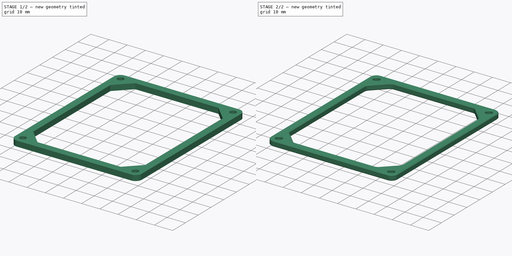
[diagram: build sequence overview — one tinted view per stage of 2, left to right]
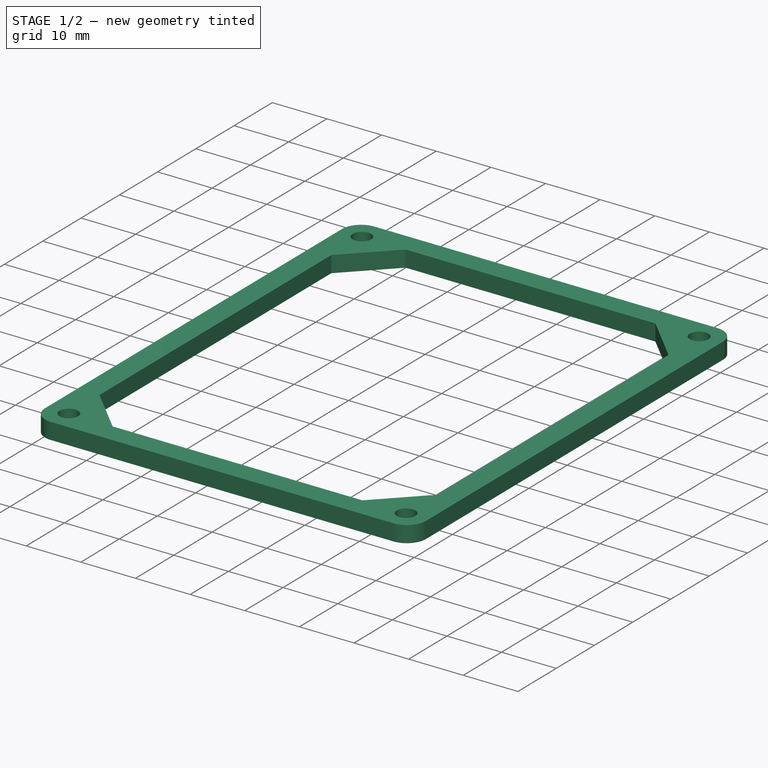
[diagram: stage 1 of 2 — iso view after this stage's code; geometry added in this stage tinted green]
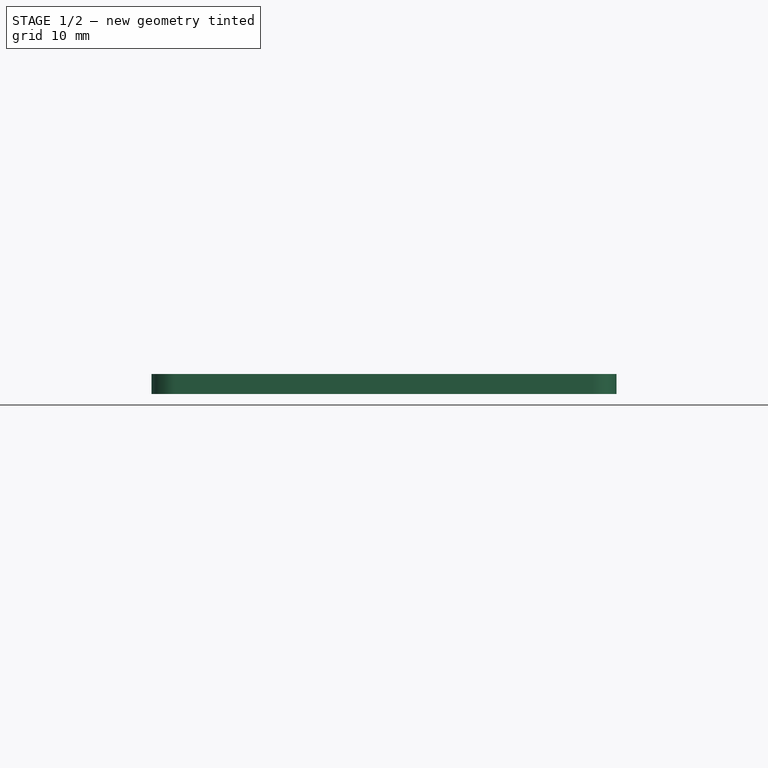
[diagram: stage 1 of 2 — front view after this stage's code; geometry added in this stage tinted green]
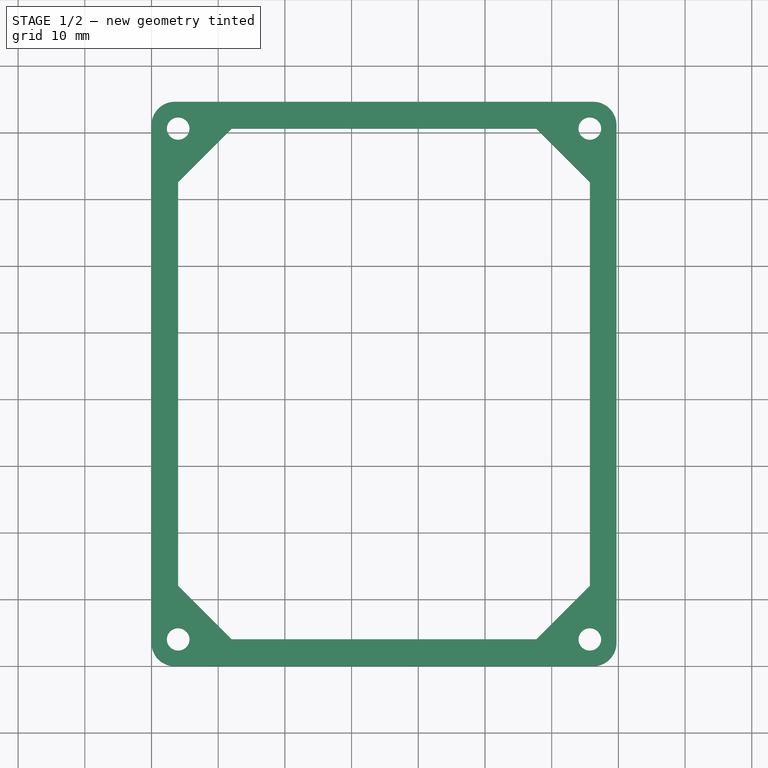
[diagram: stage 1 of 2 — top view after this stage's code; geometry added in this stage tinted green]
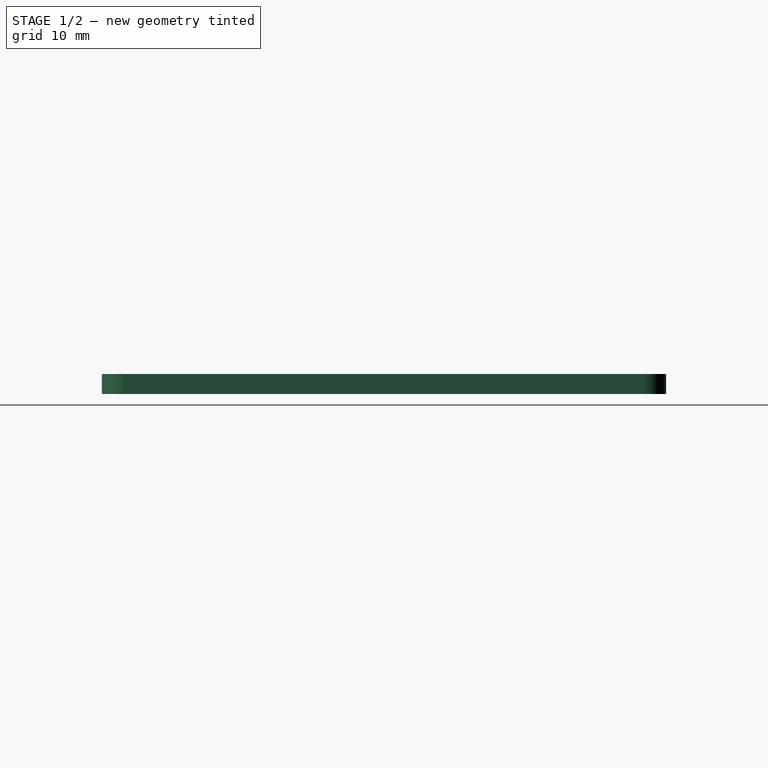
[diagram: stage 1 of 2 — right view after this stage's code; geometry added in this stage tinted green]
FCSTD DOCUMENT  (FreeCAD 0.19R24291 (Git))
Label: 2p5-inch-hdd-spacer
License: All rights reserved
LicenseURL: http://en.wikipedia.org/wiki/All_rights_reserved
objects: PartDesign::Fillet×2, Sketcher::SketchObject×1, PartDesign::Pad×1, PartDesign::Chamfer×1, PartDesign::Body×1
note: 10 computed .brp shape members not serialized (recipe doc carries the construction recipe); baked Part::Feature solids carry a one-line shape summary decoded from their .brp

FEATURE [Sketcher::SketchObject] Sketch
  FullyConstrained = true
  MapMode = 5
  Support = -> [XY_Plane]
  sketch-geometry (16):
    g0: Circle CenterX=4 CenterY=80.6 CenterZ=0 NormalX=0 NormalY=0 NormalZ=1 AngleXU=0 Radius=1.7
    g1: Circle CenterX=65.72 CenterY=80.6 CenterZ=0 NormalX=0 NormalY=0 NormalZ=1 AngleXU=0 Radius=1.7
    g2: Circle CenterX=4 CenterY=4 CenterZ=0 NormalX=0 NormalY=0 NormalZ=1 AngleXU=0 Radius=1.7
    g3: Circle CenterX=65.72 CenterY=4 CenterZ=0 NormalX=0 NormalY=0 NormalZ=1 AngleXU=0 Radius=1.7
    g4: LineSegment StartX=0 StartY=84.6 StartZ=0 EndX=69.72 EndY=84.6 EndZ=0
    g5: LineSegment StartX=69.72 StartY=84.6 StartZ=0 EndX=69.72 EndY=0 EndZ=0
    g6: LineSegment StartX=69.72 StartY=0 StartZ=0 EndX=0 EndY=0 EndZ=0
    g7: LineSegment StartX=0 StartY=0 StartZ=0 EndX=0 EndY=84.6 EndZ=0
    g8: LineSegment StartX=4 StartY=72.6 StartZ=0 EndX=12 EndY=80.6 EndZ=0
    g9: LineSegment StartX=12 StartY=80.6 StartZ=0 EndX=57.72 EndY=80.6 EndZ=0
    g10: LineSegment StartX=57.72 StartY=80.6 StartZ=0 EndX=65.72 EndY=72.6 EndZ=0
    g11: LineSegment StartX=65.72 StartY=72.6 StartZ=0 EndX=65.72 EndY=12 EndZ=0
    g12: LineSegment StartX=65.72 StartY=12 StartZ=0 EndX=57.72 EndY=4 EndZ=0
    g13: LineSegment StartX=57.72 StartY=4 StartZ=0 EndX=12 EndY=4 EndZ=0
    g14: LineSegment StartX=12 StartY=4 StartZ=0 EndX=4 EndY=12 EndZ=0
    g15: LineSegment StartX=4 StartY=12 StartZ=0 EndX=4 EndY=72.6 EndZ=0
  constraints (47):
    c: Equal(g3,g2)
    c: Equal(g2,g0)
    c: Equal(g0,g1)
    c: Radius(g1) = 1.7
    c: Horizontal(g0,g1)
    c: Horizontal(g2,g3)
    c: Vertical(g2,g0)
    c: Vertical(g1,g3)
    c: DistanceX(g0,g1) = 61.72
    c: DistanceY(g3,g1) = 76.6
    c: Coincident(g4,g5)
    c: Coincident(g5,g6)
    c: Coincident(g6,g7)
    c: Coincident(g7,g4)
    c: Horizontal(g4)
    c: Horizontal(g6)
    c: Vertical(g5)
    c: Vertical(g7)
    c: DistanceX(g4,g0) = 4
    c: DistanceX(g1,g4) = 4
    c: DistanceY(g0,g4) = 4
    c: DistanceY(g6,g2) = 4
    c: Coincident(g8,g9)
    c: Horizontal(g9)
    c: Coincident(g9,g10)
    c: Coincident(g10,g11)
    c: Vertical(g11)
    c: Coincident(g11,g12)
    c: Coincident(g12,g13)
    c: Horizontal(g13)
    c: Coincident(g13,g14)
    c: Coincident(g14,g15)
    c: Coincident(g15,g8)
    c: Vertical(g15)
    c: Vertical(g8,g13)
    c: Vertical(g12,g9)
    c: Horizontal(g8,g10)
    c: Horizontal(g14,g11)
    c: Vertical(g2,g14)
    c: Vertical(g11,g3)
    c: Horizontal(g2,g13)
    c: Horizontal(g0,g8)
    c: DistanceX(g0,g8) = 8
    c: DistanceX(g9,g1) = 8
    c: DistanceY(g8,g0) = 8
    c: DistanceY(g2,g14) = 8
    c: Coincident(g6,g-1)
FEATURE [PartDesign::Pad] Pad
  Direction = (1,1,1)
  Length = 3
  Length2 = 100
  Profile = -> Sketch
  Type = 0
FEATURE [PartDesign::Fillet] Fillet
  Base = -> Pad [Edge8,Edge5,Edge2,Edge1]
  BaseFeature = -> Pad
  Radius = 3.5
  SupportTransform = false
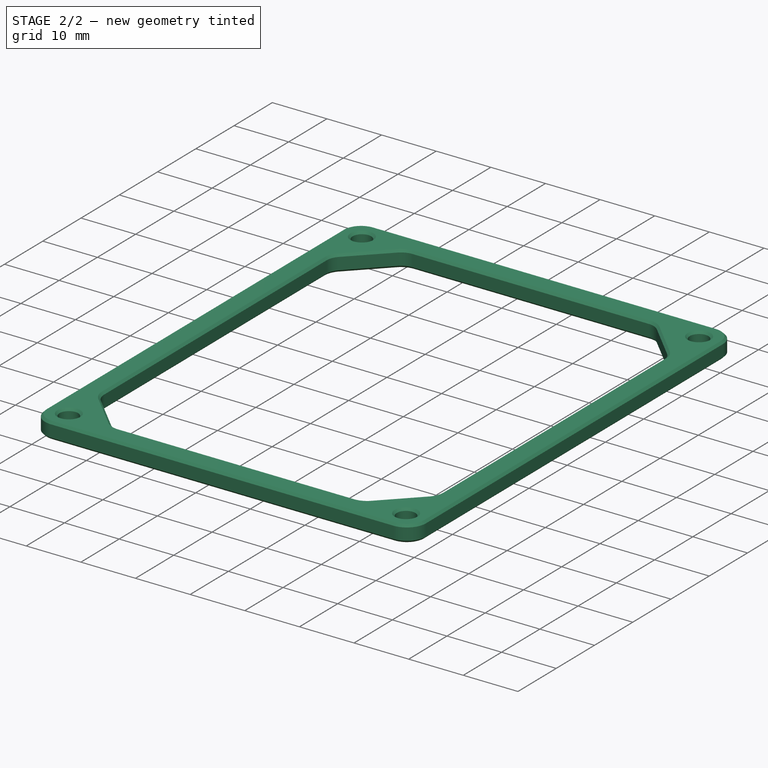
[diagram: stage 2 of 2 — iso view after this stage's code; geometry added in this stage tinted green]
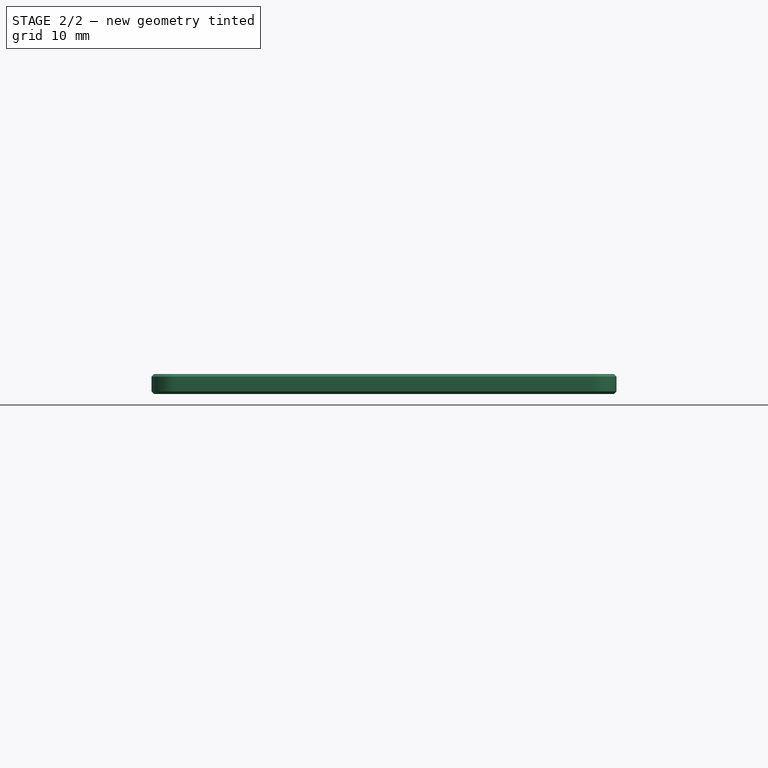
[diagram: stage 2 of 2 — front view after this stage's code; geometry added in this stage tinted green]
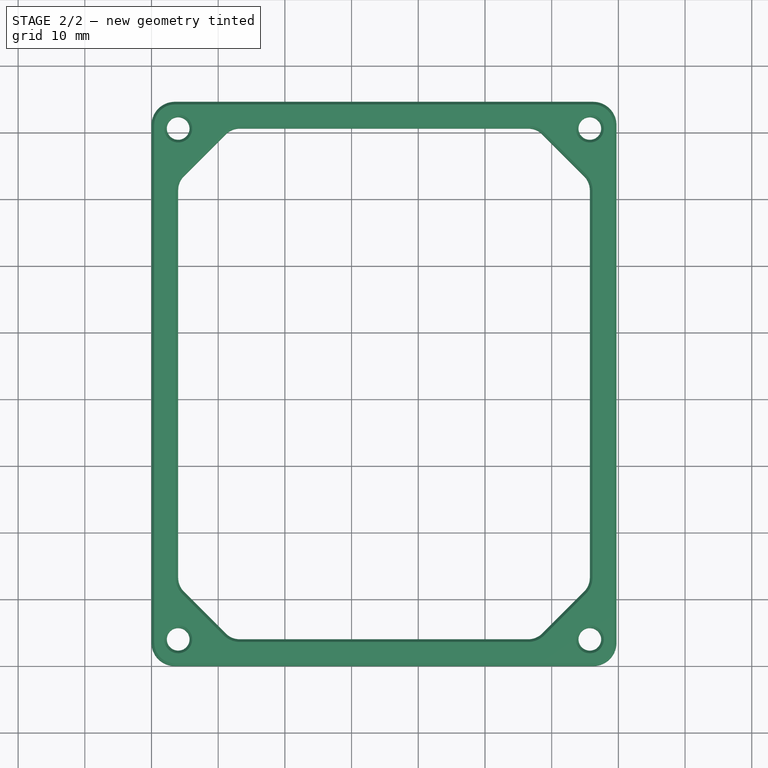
[diagram: stage 2 of 2 — top view after this stage's code; geometry added in this stage tinted green]
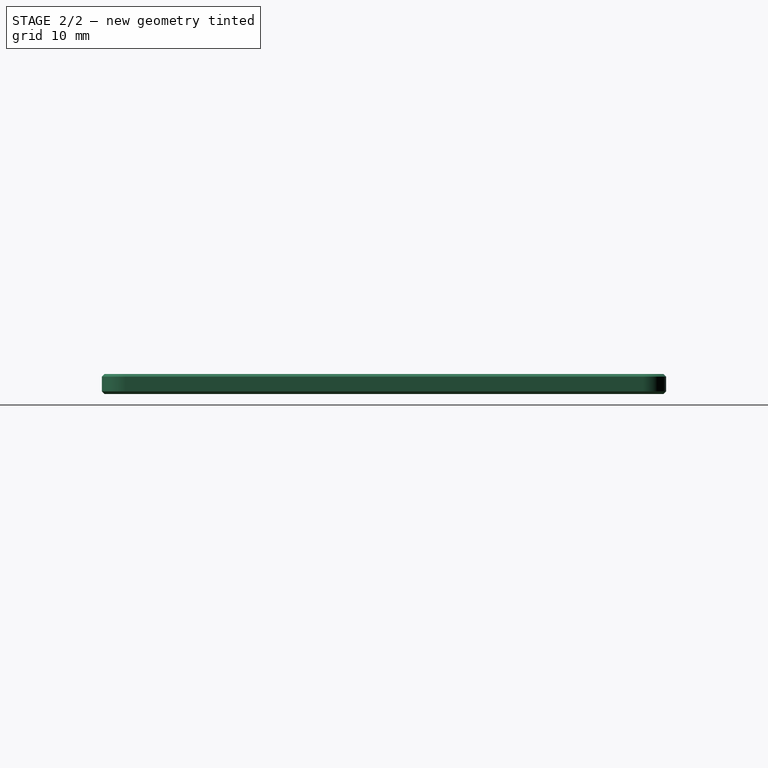
[diagram: stage 2 of 2 — right view after this stage's code; geometry added in this stage tinted green]
FEATURE [PartDesign::Fillet] Fillet001
  Base = -> Fillet [Edge50,Edge56,Edge55,Edge54,Edge51,Edge49,Edge53,Edge52]
  BaseFeature = -> Fillet
  Radius = 3
  SupportTransform = false
FEATURE [PartDesign::Chamfer] Chamfer
  Angle = 45
  Base = -> Fillet001 [Face30,Face1]
  BaseFeature = -> Fillet001
  ChamferType = 0
  FlipDirection = false
  Size = 0.4
  Size2 = 1
  SupportTransform = false
FEATURE [PartDesign::Body] Body
  Group = -> [Sketch,Pad,Fillet,Fillet001,Chamfer]
  Origin = -> Origin
  Tip = -> Chamfer
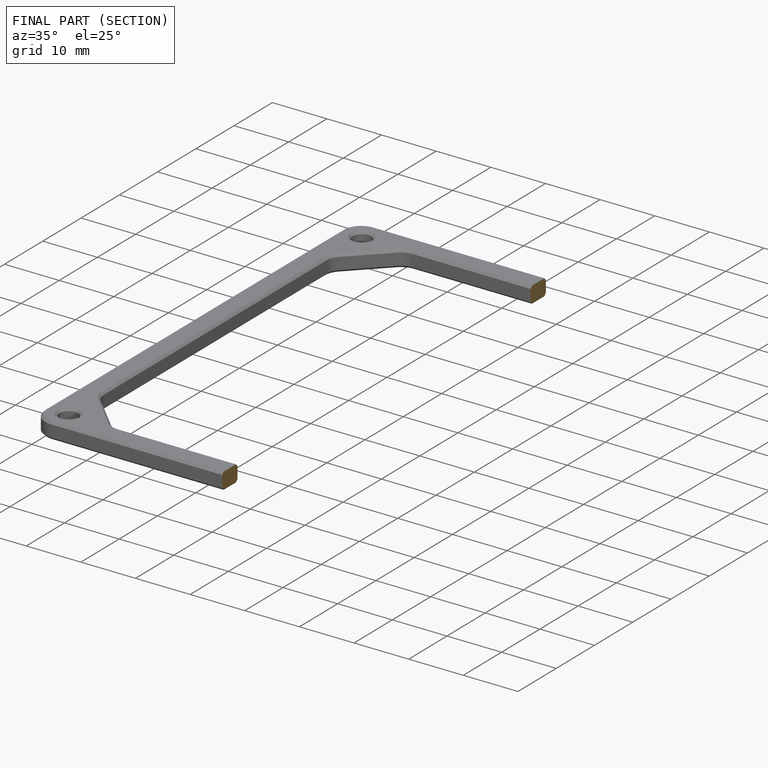
[diagram: finished part — half-section view (interior)]
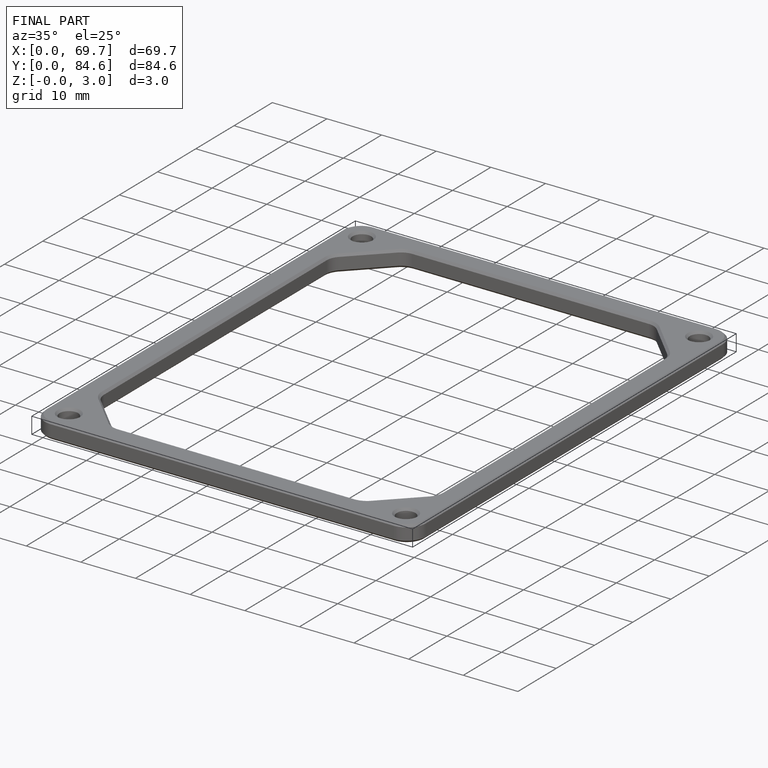
[diagram: finished part — iso view with bounding-box wireframe]
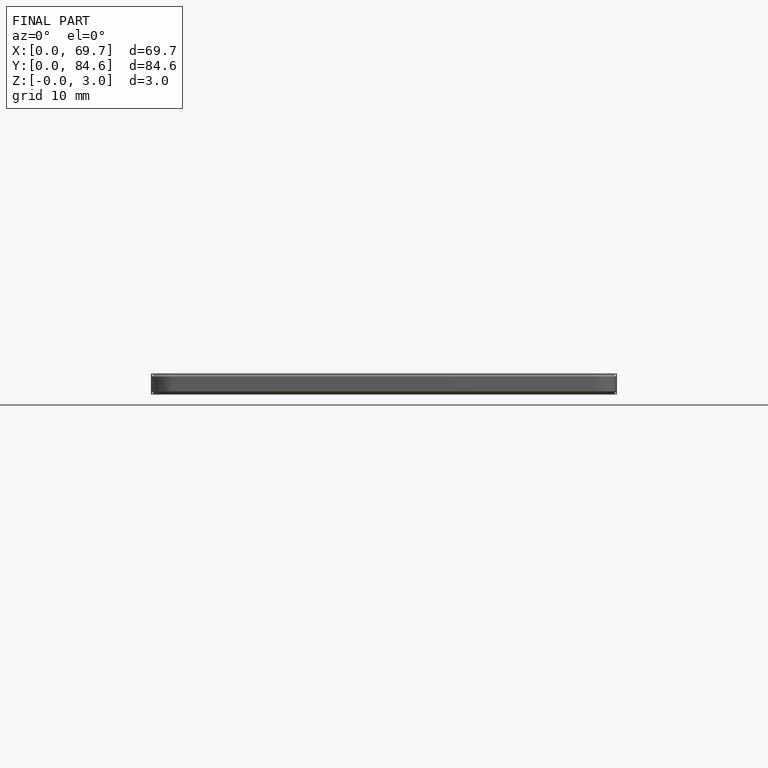
[diagram: finished part — front view with bounding-box wireframe]
